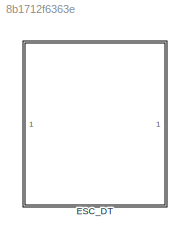
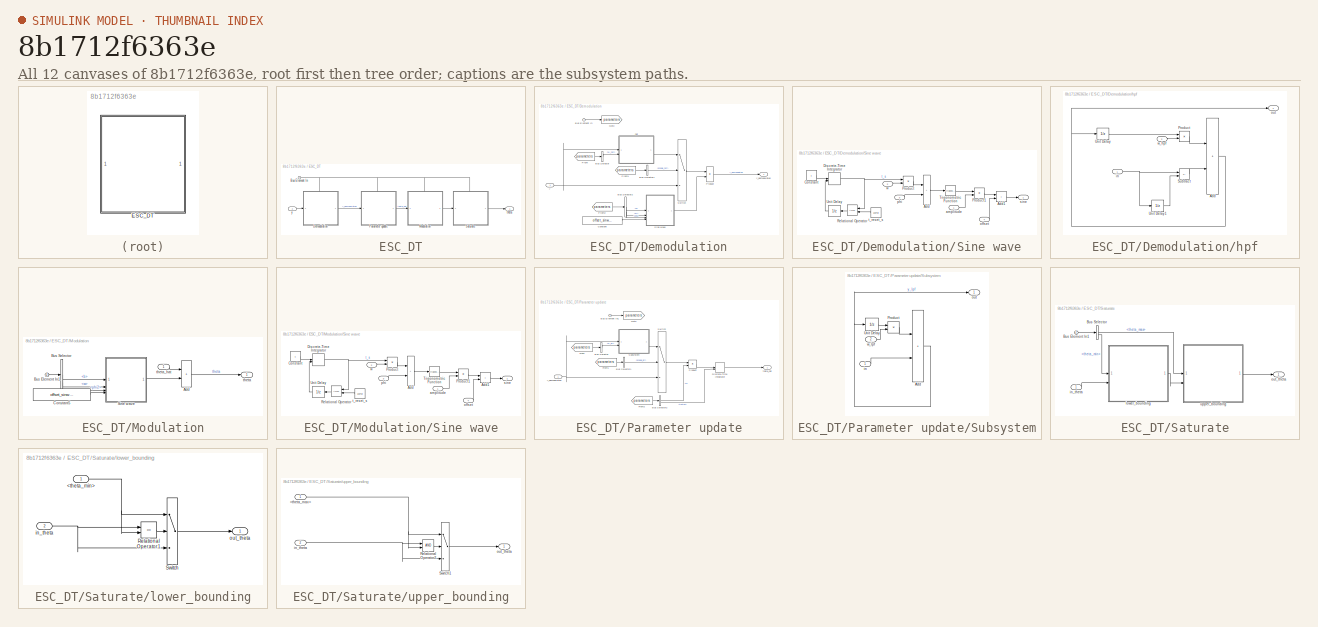
[diagram: thumbnail index - all 12 canvases of the model, root first then tree order]
MODEL slx_8b1712f6363e
KIND library
CONFIG AbsTol = auto
CONFIG EnableMultiTasking = off
CONFIG FixedStep = auto
CONFIG MaxStep = auto
CONFIG MinStep = auto
CONFIG RelTol = 1e-3
CONFIG SampleTimeConstraint = Unconstrained
CONFIG SolverName = VariableStepAuto
CONFIG StartTime = 0.0
CONFIG StopTime = 10.0
BLOCK [SubSystem] ESC_DT
  RTWSystemCode = Reusable function
  TreatAsAtomicUnit = on
BLOCK [Inport] ESC_DT/Bus Element In
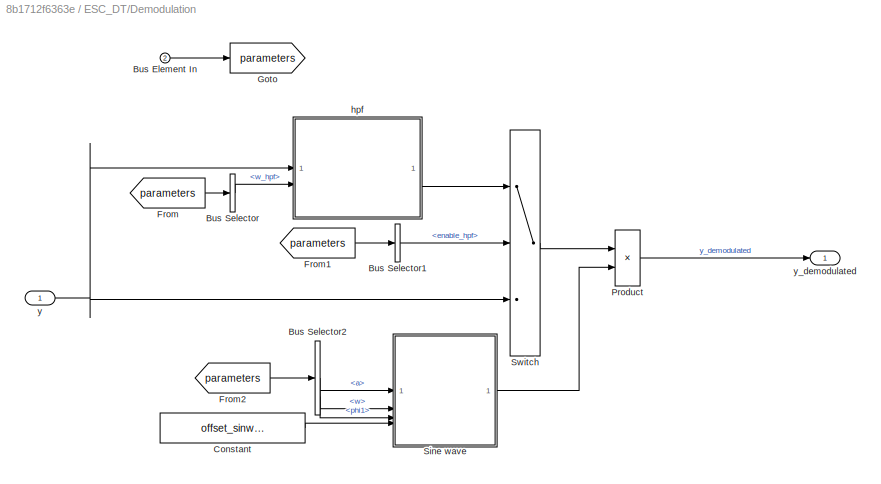
BLOCK [SubSystem] ESC_DT/Demodulation
  PortSchema = {"entries":[{"content":{"sides":[{"content":{"connectorIds":["In1"]},"type":"ConnectorPlacement.EquallySpacedRectSide","uuid":"9be20e08-1b04-4097-90e8-af3e7d9708a2"},{"content":{"connectorIds":["Out1"],"side":"RIGHT"},"type":"ConnectorPlacement.EquallySpacedRectSide","uuid":"f95c4cce-30aa-41a8-9527-7dbc7585a088"},{"content":{"connectorIds":["In2"],"side":"TOP"},"type":"ConnectorPlacement.EquallySp...<+245ch>  <repeated x4 — deduplicated; at blocks: Demodulation, Modulation, Parameter update, Saturate>
BLOCK [Inport] ESC_DT/Demodulation/Bus Element In
  Port = 2
BLOCK [BusSelector] ESC_DT/Demodulation/Bus Selector
  OutputSignals = w_hpf
BLOCK [BusSelector] ESC_DT/Demodulation/Bus Selector1
  OutputSignals = enable_hpf
BLOCK [BusSelector] ESC_DT/Demodulation/Bus Selector2
  OutputSignals = a,w,phi1
BLOCK [Constant] ESC_DT/Demodulation/Constant
  Value = offset_sinwave_modulation
BLOCK [From] ESC_DT/Demodulation/From
  GotoTag = parameters
BLOCK [From] ESC_DT/Demodulation/From1
  GotoTag = parameters
BLOCK [From] ESC_DT/Demodulation/From2
  GotoTag = parameters
BLOCK [Goto] ESC_DT/Demodulation/Goto
  GotoTag = parameters
BLOCK [Product] ESC_DT/Demodulation/Product
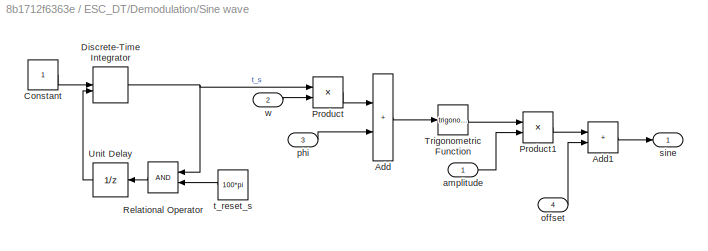
BLOCK [SubSystem] ESC_DT/Demodulation/Sine wave
BLOCK [Sum] ESC_DT/Demodulation/Sine wave/Add
  IconShape = rectangular
BLOCK [Sum] ESC_DT/Demodulation/Sine wave/Add1
  IconShape = rectangular
BLOCK [Constant] ESC_DT/Demodulation/Sine wave/Constant
BLOCK [DiscreteIntegrator] ESC_DT/Demodulation/Sine wave/Discrete-Time Integrator
  ExternalReset = rising
  ICPrevOutput = DiscIntNeverNeededParam
  ICPrevScaledInput = DiscIntNeverNeededParam
  InitialConditionSetting = Auto
  SampleTime = -1
BLOCK [Product] ESC_DT/Demodulation/Sine wave/Product
BLOCK [Product] ESC_DT/Demodulation/Sine wave/Product1
BLOCK [RelationalOperator] ESC_DT/Demodulation/Sine wave/Relational Operator
  InputSameDT = off
  NameLocation = top
  OutDataTypeStr = boolean
  RndMeth = Simplest
BLOCK [Trigonometry] ESC_DT/Demodulation/Sine wave/Trigonometric Function
BLOCK [UnitDelay] ESC_DT/Demodulation/Sine wave/Unit Delay
  HasFrameUpgradeWarning = on
  NameLocation = top
  SampleTime = -1
BLOCK [Inport] ESC_DT/Demodulation/Sine wave/amplitude
BLOCK [Inport] ESC_DT/Demodulation/Sine wave/offset
  Port = 4
BLOCK [Inport] ESC_DT/Demodulation/Sine wave/phi
  Port = 3
BLOCK [Outport] ESC_DT/Demodulation/Sine wave/sine
BLOCK [Constant] ESC_DT/Demodulation/Sine wave/t_reset_s
  Value = 100*pi
BLOCK [Inport] ESC_DT/Demodulation/Sine wave/w
  Port = 2
BLOCK [Switch] ESC_DT/Demodulation/Switch
  Criteria = u2 ~= 0
  InputSameDT = off
  SaturateOnIntegerOverflow = off
BLOCK [SubSystem] ESC_DT/Demodulation/hpf
BLOCK [Sum] ESC_DT/Demodulation/hpf/Add
  IconShape = rectangular
BLOCK [Product] ESC_DT/Demodulation/hpf/Product
BLOCK [Sum] ESC_DT/Demodulation/hpf/Subtract
  IconShape = rectangular
  Inputs = +-
BLOCK [UnitDelay] ESC_DT/Demodulation/hpf/Unit Delay
  HasFrameUpgradeWarning = on
  SampleTime = -1
BLOCK [UnitDelay] ESC_DT/Demodulation/hpf/Unit Delay1
  HasFrameUpgradeWarning = on
  SampleTime = -1
BLOCK [Inport] ESC_DT/Demodulation/hpf/in
BLOCK [Outport] ESC_DT/Demodulation/hpf/out
BLOCK [Inport] ESC_DT/Demodulation/hpf/w_hpf
  Port = 2
BLOCK [Inport] ESC_DT/Demodulation/y
BLOCK [Outport] ESC_DT/Demodulation/y_demodulated
BLOCK [SubSystem] ESC_DT/Modulation
BLOCK [Sum] ESC_DT/Modulation/Add
  IconShape = rectangular
BLOCK [Inport] ESC_DT/Modulation/Bus Element In1
  Port = 2
BLOCK [BusSelector] ESC_DT/Modulation/Bus Selector
  OutputSignals = b,w,phi2
BLOCK [Constant] ESC_DT/Modulation/Constant5
  Value = offset_sinwave_demodulation
BLOCK [SubSystem] ESC_DT/Modulation/Sine wave
BLOCK [Sum] ESC_DT/Modulation/Sine wave/Add
  IconShape = rectangular
BLOCK [Sum] ESC_DT/Modulation/Sine wave/Add1
  IconShape = rectangular
BLOCK [Constant] ESC_DT/Modulation/Sine wave/Constant
BLOCK [DiscreteIntegrator] ESC_DT/Modulation/Sine wave/Discrete-Time Integrator
  ExternalReset = rising
  ICPrevOutput = DiscIntNeverNeededParam
  ICPrevScaledInput = DiscIntNeverNeededParam
  InitialConditionSetting = Auto
  SampleTime = -1
BLOCK [Product] ESC_DT/Modulation/Sine wave/Product
BLOCK [Product] ESC_DT/Modulation/Sine wave/Product1
BLOCK [RelationalOperator] ESC_DT/Modulation/Sine wave/Relational Operator
  InputSameDT = off
  NameLocation = top
  OutDataTypeStr = boolean
  RndMeth = Simplest
BLOCK [Trigonometry] ESC_DT/Modulation/Sine wave/Trigonometric Function
BLOCK [UnitDelay] ESC_DT/Modulation/Sine wave/Unit Delay
  HasFrameUpgradeWarning = on
  NameLocation = top
  SampleTime = -1
BLOCK [Inport] ESC_DT/Modulation/Sine wave/amplitude
BLOCK [Inport] ESC_DT/Modulation/Sine wave/offset
  Port = 4
BLOCK [Inport] ESC_DT/Modulation/Sine wave/phi
  Port = 3
BLOCK [Outport] ESC_DT/Modulation/Sine wave/sine
BLOCK [Constant] ESC_DT/Modulation/Sine wave/t_reset_s
  Value = 100*pi
BLOCK [Inport] ESC_DT/Modulation/Sine wave/w
  Port = 2
BLOCK [Outport] ESC_DT/Modulation/theta
BLOCK [Inport] ESC_DT/Modulation/theta_hat
BLOCK [SubSystem] ESC_DT/Parameter update
BLOCK [Inport] ESC_DT/Parameter update/Bus Element In1
  Port = 2
BLOCK [BusSelector] ESC_DT/Parameter update/Bus Selector
  OutputSignals = w_lpf
BLOCK [BusSelector] ESC_DT/Parameter update/Bus Selector1
  OutputSignals = enable_lpf
BLOCK [BusSelector] ESC_DT/Parameter update/Bus Selector2
  OutputSignals = k,theta0
BLOCK [DiscreteIntegrator] ESC_DT/Parameter update/Discrete-Time Integrator
  ICPrevOutput = DiscIntNeverNeededParam
  ICPrevScaledInput = DiscIntNeverNeededParam
  InitialCondition = theta0
  InitialConditionSetting = Auto
  InitialConditionSource = external
  SampleTime = -1
BLOCK [From] ESC_DT/Parameter update/From
  GotoTag = parameters
BLOCK [From] ESC_DT/Parameter update/From1
  GotoTag = parameters
BLOCK [From] ESC_DT/Parameter update/From2
  GotoTag = parameters
BLOCK [Goto] ESC_DT/Parameter update/Goto
  GotoTag = parameters
BLOCK [Product] ESC_DT/Parameter update/Product
BLOCK [SubSystem] ESC_DT/Parameter update/Subsystem
BLOCK [Sum] ESC_DT/Parameter update/Subsystem/Add
  IconShape = rectangular
BLOCK [Product] ESC_DT/Parameter update/Subsystem/Product
BLOCK [UnitDelay] ESC_DT/Parameter update/Subsystem/Unit Delay
  HasFrameUpgradeWarning = on
  SampleTime = -1
BLOCK [Inport] ESC_DT/Parameter update/Subsystem/in
BLOCK [Outport] ESC_DT/Parameter update/Subsystem/out
BLOCK [Inport] ESC_DT/Parameter update/Subsystem/w_lpf
  Port = 2
BLOCK [Switch] ESC_DT/Parameter update/Switch
  Criteria = u2 ~= 0
  InputSameDT = off
  SaturateOnIntegerOverflow = off
BLOCK [Outport] ESC_DT/Parameter update/theta_hat
BLOCK [Inport] ESC_DT/Parameter update/y_demodulated
BLOCK [SubSystem] ESC_DT/Saturate
BLOCK [Inport] ESC_DT/Saturate/Bus Element In1
  Port = 2
BLOCK [BusSelector] ESC_DT/Saturate/Bus Selector
  OutputSignals = theta_max,theta_min
BLOCK [Inport] ESC_DT/Saturate/in_theta
BLOCK [SubSystem] ESC_DT/Saturate/lower_bounding
BLOCK [Inport] ESC_DT/Saturate/lower_bounding/<theta_min>
BLOCK [RelationalOperator] ESC_DT/Saturate/lower_bounding/Relational Operator1
  InputSameDT = off
  Operator = <=
  OutDataTypeStr = boolean
  RndMeth = Simplest
BLOCK [Switch] ESC_DT/Saturate/lower_bounding/Switch
  Criteria = u2 ~= 0
  InputSameDT = off
  SaturateOnIntegerOverflow = off
BLOCK [Inport] ESC_DT/Saturate/lower_bounding/in_theta
  Port = 2
BLOCK [Outport] ESC_DT/Saturate/lower_bounding/out_theta
BLOCK [Outport] ESC_DT/Saturate/out_theta
BLOCK [SubSystem] ESC_DT/Saturate/upper_bounding
BLOCK [Inport] ESC_DT/Saturate/upper_bounding/<theta_max>
BLOCK [RelationalOperator] ESC_DT/Saturate/upper_bounding/Relational Operator2
  InputSameDT = off
  OutDataTypeStr = boolean
  RndMeth = Simplest
BLOCK [Switch] ESC_DT/Saturate/upper_bounding/Switch1
  Criteria = u2 ~= 0
  InputSameDT = off
  SaturateOnIntegerOverflow = off
BLOCK [Inport] ESC_DT/Saturate/upper_bounding/in_theta
  Port = 2
BLOCK [Outport] ESC_DT/Saturate/upper_bounding/out_theta
BLOCK [Outport] ESC_DT/theta
BLOCK [Inport] ESC_DT/y
  Port = 2
NET ESC_DT/Bus Element In:1 -> ESC_DT/Demodulation:2, ESC_DT/Modulation:2, ESC_DT/Parameter update:2, ESC_DT/Saturate:2
LINE ESC_DT/Demodulation/Bus Element In:1 -> ESC_DT/Demodulation/Goto:1
LINE ESC_DT/Demodulation/Bus Selector1:1 -> ESC_DT/Demodulation/Switch:2
LINE ESC_DT/Demodulation/Bus Selector2:1 -> ESC_DT/Demodulation/Sine wave:1
LINE ESC_DT/Demodulation/Bus Selector2:2 -> ESC_DT/Demodulation/Sine wave:2
LINE ESC_DT/Demodulation/Bus Selector2:3 -> ESC_DT/Demodulation/Sine wave:3
LINE ESC_DT/Demodulation/Bus Selector:1 -> ESC_DT/Demodulation/hpf:2
LINE ESC_DT/Demodulation/Constant:1 -> ESC_DT/Demodulation/Sine wave:4
LINE ESC_DT/Demodulation/From1:1 -> ESC_DT/Demodulation/Bus Selector1:1
LINE ESC_DT/Demodulation/From2:1 -> ESC_DT/Demodulation/Bus Selector2:1
LINE ESC_DT/Demodulation/From:1 -> ESC_DT/Demodulation/Bus Selector:1
LINE ESC_DT/Demodulation/Product:1 -> ESC_DT/Demodulation/y_demodulated:1
LINE ESC_DT/Demodulation/Sine wave/Add1:1 -> ESC_DT/Demodulation/Sine wave/sine:1
LINE ESC_DT/Demodulation/Sine wave/Add:1 -> ESC_DT/Demodulation/Sine wave/Trigonometric Function:1
LINE ESC_DT/Demodulation/Sine wave/Constant:1 -> ESC_DT/Demodulation/Sine wave/Discrete-Time Integrator:1
NET ESC_DT/Demodulation/Sine wave/Discrete-Time Integrator:1 -> ESC_DT/Demodulation/Sine wave/Product:1, ESC_DT/Demodulation/Sine wave/Relational Operator:1
LINE ESC_DT/Demodulation/Sine wave/Product1:1 -> ESC_DT/Demodulation/Sine wave/Add1:1
LINE ESC_DT/Demodulation/Sine wave/Product:1 -> ESC_DT/Demodulation/Sine wave/Add:1
LINE ESC_DT/Demodulation/Sine wave/Relational Operator:1 -> ESC_DT/Demodulation/Sine wave/Unit Delay:1
LINE ESC_DT/Demodulation/Sine wave/Trigonometric Function:1 -> ESC_DT/Demodulation/Sine wave/Product1:1
LINE ESC_DT/Demodulation/Sine wave/Unit Delay:1 -> ESC_DT/Demodulation/Sine wave/Discrete-Time Integrator:2
LINE ESC_DT/Demodulation/Sine wave/amplitude:1 -> ESC_DT/Demodulation/Sine wave/Product1:2
LINE ESC_DT/Demodulation/Sine wave/offset:1 -> ESC_DT/Demodulation/Sine wave/Add1:2
LINE ESC_DT/Demodulation/Sine wave/phi:1 -> ESC_DT/Demodulation/Sine wave/Add:2
LINE ESC_DT/Demodulation/Sine wave/t_reset_s:1 -> ESC_DT/Demodulation/Sine wave/Relational Operator:2
LINE ESC_DT/Demodulation/Sine wave/w:1 -> ESC_DT/Demodulation/Sine wave/Product:2
LINE ESC_DT/Demodulation/Sine wave:1 -> ESC_DT/Demodulation/Product:2
LINE ESC_DT/Demodulation/Switch:1 -> ESC_DT/Demodulation/Product:1
NET ESC_DT/Demodulation/hpf/Add:1 -> ESC_DT/Demodulation/hpf/Unit Delay:1, ESC_DT/Demodulation/hpf/out:1
LINE ESC_DT/Demodulation/hpf/Product:1 -> ESC_DT/Demodulation/hpf/Add:1
LINE ESC_DT/Demodulation/hpf/Subtract:1 -> ESC_DT/Demodulation/hpf/Add:2
LINE ESC_DT/Demodulation/hpf/Unit Delay1:1 -> ESC_DT/Demodulation/hpf/Subtract:2
LINE ESC_DT/Demodulation/hpf/Unit Delay:1 -> ESC_DT/Demodulation/hpf/Product:1
NET ESC_DT/Demodulation/hpf/in:1 -> ESC_DT/Demodulation/hpf/Subtract:1, ESC_DT/Demodulation/hpf/Unit Delay1:1
LINE ESC_DT/Demodulation/hpf/w_hpf:1 -> ESC_DT/Demodulation/hpf/Product:2
LINE ESC_DT/Demodulation/hpf:1 -> ESC_DT/Demodulation/Switch:1
NET ESC_DT/Demodulation/y:1 -> ESC_DT/Demodulation/Switch:3, ESC_DT/Demodulation/hpf:1
LINE ESC_DT/Demodulation:1 -> ESC_DT/Parameter update:1
LINE ESC_DT/Modulation/Add:1 -> ESC_DT/Modulation/theta:1
LINE ESC_DT/Modulation/Bus Element In1:1 -> ESC_DT/Modulation/Bus Selector:1
LINE ESC_DT/Modulation/Bus Selector:1 -> ESC_DT/Modulation/Sine wave:1
LINE ESC_DT/Modulation/Bus Selector:2 -> ESC_DT/Modulation/Sine wave:2
LINE ESC_DT/Modulation/Bus Selector:3 -> ESC_DT/Modulation/Sine wave:3
LINE ESC_DT/Modulation/Constant5:1 -> ESC_DT/Modulation/Sine wave:4
LINE ESC_DT/Modulation/Sine wave/Add1:1 -> ESC_DT/Modulation/Sine wave/sine:1
LINE ESC_DT/Modulation/Sine wave/Add:1 -> ESC_DT/Modulation/Sine wave/Trigonometric Function:1
LINE ESC_DT/Modulation/Sine wave/Constant:1 -> ESC_DT/Modulation/Sine wave/Discrete-Time Integrator:1
NET ESC_DT/Modulation/Sine wave/Discrete-Time Integrator:1 -> ESC_DT/Modulation/Sine wave/Product:1, ESC_DT/Modulation/Sine wave/Relational Operator:1
LINE ESC_DT/Modulation/Sine wave/Product1:1 -> ESC_DT/Modulation/Sine wave/Add1:1
LINE ESC_DT/Modulation/Sine wave/Product:1 -> ESC_DT/Modulation/Sine wave/Add:1
LINE ESC_DT/Modulation/Sine wave/Relational Operator:1 -> ESC_DT/Modulation/Sine wave/Unit Delay:1
LINE ESC_DT/Modulation/Sine wave/Trigonometric Function:1 -> ESC_DT/Modulation/Sine wave/Product1:1
LINE ESC_DT/Modulation/Sine wave/Unit Delay:1 -> ESC_DT/Modulation/Sine wave/Discrete-Time Integrator:2
LINE ESC_DT/Modulation/Sine wave/amplitude:1 -> ESC_DT/Modulation/Sine wave/Product1:2
LINE ESC_DT/Modulation/Sine wave/offset:1 -> ESC_DT/Modulation/Sine wave/Add1:2
LINE ESC_DT/Modulation/Sine wave/phi:1 -> ESC_DT/Modulation/Sine wave/Add:2
LINE ESC_DT/Modulation/Sine wave/t_reset_s:1 -> ESC_DT/Modulation/Sine wave/Relational Operator:2
LINE ESC_DT/Modulation/Sine wave/w:1 -> ESC_DT/Modulation/Sine wave/Product:2
LINE ESC_DT/Modulation/Sine wave:1 -> ESC_DT/Modulation/Add:2
LINE ESC_DT/Modulation/theta_hat:1 -> ESC_DT/Modulation/Add:1
LINE ESC_DT/Modulation:1 -> ESC_DT/Saturate:1
LINE ESC_DT/Parameter update/Bus Element In1:1 -> ESC_DT/Parameter update/Goto:1
LINE ESC_DT/Parameter update/Bus Selector1:1 -> ESC_DT/Parameter update/Switch:2
LINE ESC_DT/Parameter update/Bus Selector2:1 -> ESC_DT/Parameter update/Product:2
LINE ESC_DT/Parameter update/Bus Selector2:2 -> ESC_DT/Parameter update/Discrete-Time Integrator:2
LINE ESC_DT/Parameter update/Bus Selector:1 -> ESC_DT/Parameter update/Subsystem:2
LINE ESC_DT/Parameter update/Discrete-Time Integrator:1 -> ESC_DT/Parameter update/theta_hat:1
LINE ESC_DT/Parameter update/From1:1 -> ESC_DT/Parameter update/Bus Selector1:1
LINE ESC_DT/Parameter update/From2:1 -> ESC_DT/Parameter update/Bus Selector2:1
LINE ESC_DT/Parameter update/From:1 -> ESC_DT/Parameter update/Bus Selector:1
LINE ESC_DT/Parameter update/Product:1 -> ESC_DT/Parameter update/Discrete-Time Integrator:1
NET ESC_DT/Parameter update/Subsystem/Add:1 -> ESC_DT/Parameter update/Subsystem/Unit Delay:1, ESC_DT/Parameter update/Subsystem/out:1
LINE ESC_DT/Parameter update/Subsystem/Product:1 -> ESC_DT/Parameter update/Subsystem/Add:1
LINE ESC_DT/Parameter update/Subsystem/Unit Delay:1 -> ESC_DT/Parameter update/Subsystem/Product:1
LINE ESC_DT/Parameter update/Subsystem/in:1 -> ESC_DT/Parameter update/Subsystem/Add:2
LINE ESC_DT/Parameter update/Subsystem/w_lpf:1 -> ESC_DT/Parameter update/Subsystem/Product:2
LINE ESC_DT/Parameter update/Subsystem:1 -> ESC_DT/Parameter update/Switch:1
LINE ESC_DT/Parameter update/Switch:1 -> ESC_DT/Parameter update/Product:1
NET ESC_DT/Parameter update/y_demodulated:1 -> ESC_DT/Parameter update/Subsystem:1, ESC_DT/Parameter update/Switch:3
LINE ESC_DT/Parameter update:1 -> ESC_DT/Modulation:1
LINE ESC_DT/Saturate/Bus Element In1:1 -> ESC_DT/Saturate/Bus Selector:1
LINE ESC_DT/Saturate/Bus Selector:1 -> ESC_DT/Saturate/upper_bounding:1
LINE ESC_DT/Saturate/Bus Selector:2 -> ESC_DT/Saturate/lower_bounding:1
LINE ESC_DT/Saturate/in_theta:1 -> ESC_DT/Saturate/lower_bounding:2
NET ESC_DT/Saturate/lower_bounding/<theta_min>:1 -> ESC_DT/Saturate/lower_bounding/Relational Operator1:2, ESC_DT/Saturate/lower_bounding/Switch:1
LINE ESC_DT/Saturate/lower_bounding/Relational Operator1:1 -> ESC_DT/Saturate/lower_bounding/Switch:2
LINE ESC_DT/Saturate/lower_bounding/Switch:1 -> ESC_DT/Saturate/lower_bounding/out_theta:1
NET ESC_DT/Saturate/lower_bounding/in_theta:1 -> ESC_DT/Saturate/lower_bounding/Relational Operator1:1, ESC_DT/Saturate/lower_bounding/Switch:3
LINE ESC_DT/Saturate/lower_bounding:1 -> ESC_DT/Saturate/upper_bounding:2
NET ESC_DT/Saturate/upper_bounding/<theta_max>:1 -> ESC_DT/Saturate/upper_bounding/Relational Operator2:2, ESC_DT/Saturate/upper_bounding/Switch1:1
LINE ESC_DT/Saturate/upper_bounding/Relational Operator2:1 -> ESC_DT/Saturate/upper_bounding/Switch1:2
LINE ESC_DT/Saturate/upper_bounding/Switch1:1 -> ESC_DT/Saturate/upper_bounding/out_theta:1
NET ESC_DT/Saturate/upper_bounding/in_theta:1 -> ESC_DT/Saturate/upper_bounding/Relational Operator2:1, ESC_DT/Saturate/upper_bounding/Switch1:3
LINE ESC_DT/Saturate/upper_bounding:1 -> ESC_DT/Saturate/out_theta:1
LINE ESC_DT/Saturate:1 -> ESC_DT/theta:1
LINE ESC_DT/y:1 -> ESC_DT/Demodulation:1
note: NET lines group one-source signal fan-out (src -> all destinations, sorted); 1:1 wires keep LINE
